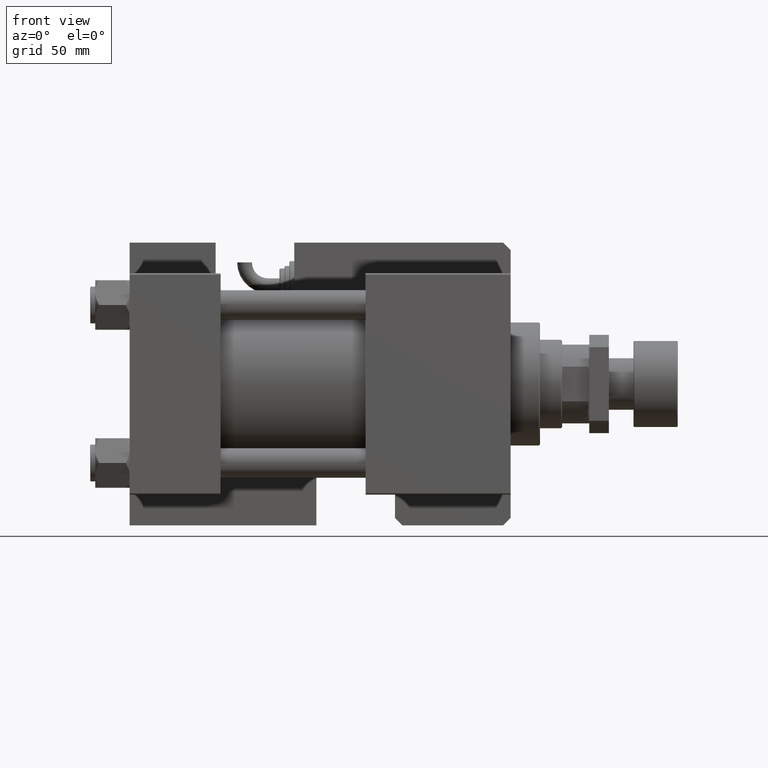
[diagram: clean part render]
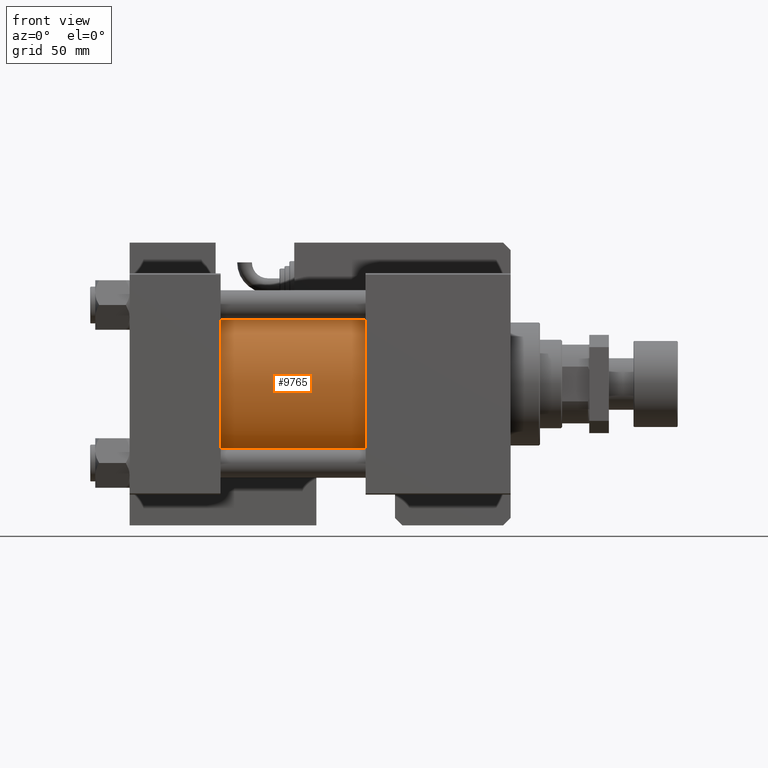
[diagram: same view with one face highlighted and labeled with its STEP entity id]
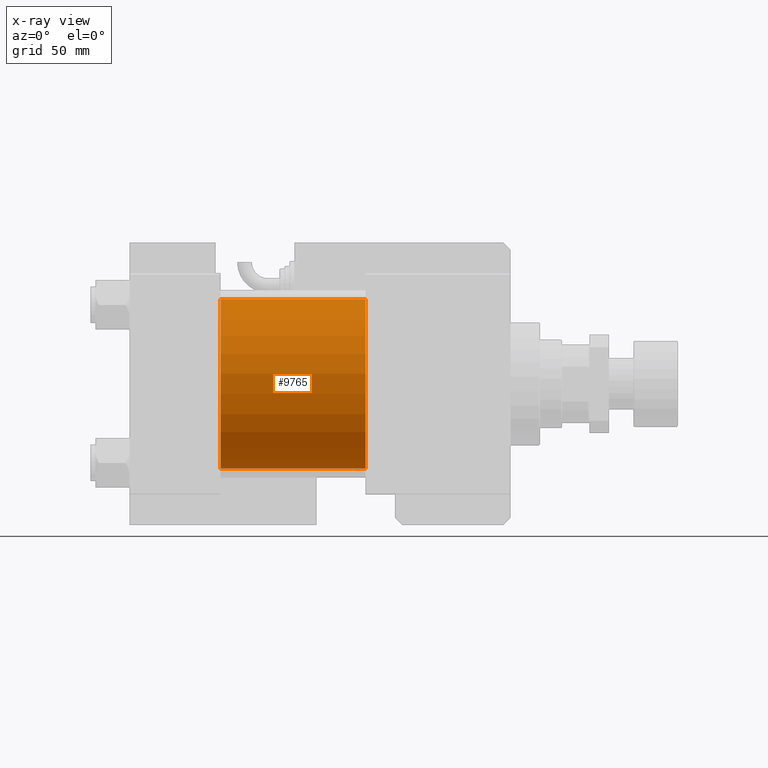
[diagram: x-ray of the same camera — body ghosted, the highlighted face saturated]
A machine part, front view. The second image highlights one B-rep face of the part: STEP entity #9765.
The next image is the same camera in x-ray: the body ghosted, the highlighted face saturated — about 2% of this face is hidden behind the body in this view.
In plain terms, the highlighted cylindrical surface (partial cylindrical patch) has radius 34.5 mm, axis along (-1, -0, -0).
Its self-contained STEP definition (entity closure, byte-faithful):
#507 = DIRECTION ( 'NONE',  ( 0.000000000000000000, 0.000000000000000000, 1.000000000000000000 ) ) ;
#2647 = EDGE_CURVE ( 'NONE', #16261, #2986, #6061, .T. ) ;
#2986 = VERTEX_POINT ( 'NONE', #53513 ) ;
#3009 = CARTESIAN_POINT ( 'NONE',  ( 96.00000000000000000, -2.602085213965210642E-15, 0.000000000000000000 ) ) ;
#4229 = FACE_OUTER_BOUND ( 'NONE', #36363, .T. ) ;
#6061 = LINE ( 'NONE', #19165, #27434 ) ;
#8208 = CARTESIAN_POINT ( 'NONE',  ( 96.00000000000000000, -2.602085213965210642E-15, 34.50000000000000000 ) ) ;
#9765 = ADVANCED_FACE ( 'NONE', ( #4229 ), #56399, .T. ) ;
#10999 = DIRECTION ( 'NONE',  ( 0.000000000000000000, 0.000000000000000000, 1.000000000000000000 ) ) ;
#13642 = VERTEX_POINT ( 'NONE', #18558 ) ;
#15337 = ORIENTED_EDGE ( 'NONE', *, *, #19786, .F. ) ;
#16261 = VERTEX_POINT ( 'NONE', #41783 ) ;
#16617 = VECTOR ( 'NONE', #17052, 1000.000000000000000 ) ;
#17052 = DIRECTION ( 'NONE',  ( -1.000000000000000000, -0.000000000000000000, -0.000000000000000000 ) ) ;
#17630 = CARTESIAN_POINT ( 'NONE',  ( 96.00000000000000000, -2.602085213965210642E-15, 0.000000000000000000 ) ) ;
#18558 = CARTESIAN_POINT ( 'NONE',  ( 96.00000000000000000, -2.602085213965210642E-15, 34.50000000000000000 ) ) ;
#19165 = CARTESIAN_POINT ( 'NONE',  ( 96.00000000000000000, 1.622946243093158675E-15, -34.50000000000000000 ) ) ;
#19664 = EDGE_CURVE ( 'NONE', #25422, #2986, #32808, .T. ) ;
#19786 = EDGE_CURVE ( 'NONE', #13642, #16261, #39153, .T. ) ;
#20684 = DIRECTION ( 'NONE',  ( 1.000000000000000000, 0.000000000000000000, 0.000000000000000000 ) ) ;
#25422 = VERTEX_POINT ( 'NONE', #50556 ) ;
#26175 = DIRECTION ( 'NONE',  ( -1.000000000000000000, -0.000000000000000000, -0.000000000000000000 ) ) ;
#27434 = VECTOR ( 'NONE', #36001, 1000.000000000000000 ) ;
#29250 = DIRECTION ( 'NONE',  ( 0.000000000000000000, 0.000000000000000000, -1.000000000000000000 ) ) ;
#32110 = ORIENTED_EDGE ( 'NONE', *, *, #47714, .T. ) ;
#32808 = CIRCLE ( 'NONE', #35520, 34.50000000000000000 ) ;
#35520 = AXIS2_PLACEMENT_3D ( 'NONE', #41798, #36680, #10999 ) ;
#36001 = DIRECTION ( 'NONE',  ( -1.000000000000000000, -0.000000000000000000, -0.000000000000000000 ) ) ;
#36363 = EDGE_LOOP ( 'NONE', ( #37792, #15337, #32110, #39244 ) ) ;
#36680 = DIRECTION ( 'NONE',  ( 1.000000000000000000, -0.000000000000000000, 0.000000000000000000 ) ) ;
#37358 = AXIS2_PLACEMENT_3D ( 'NONE', #3009, #20684, #29250 ) ;
#37792 = ORIENTED_EDGE ( 'NONE', *, *, #2647, .F. ) ;
#39153 = CIRCLE ( 'NONE', #37358, 34.50000000000000000 ) ;
#39244 = ORIENTED_EDGE ( 'NONE', *, *, #19664, .T. ) ;
#41783 = CARTESIAN_POINT ( 'NONE',  ( 96.00000000000000000, 1.622946243093158675E-15, -34.50000000000000000 ) ) ;
#41798 = CARTESIAN_POINT ( 'NONE',  ( 37.00000000000000000, -2.602085213965210642E-15, 0.000000000000000000 ) ) ;
#47714 = EDGE_CURVE ( 'NONE', #13642, #25422, #48110, .T. ) ;
#48110 = LINE ( 'NONE', #8208, #16617 ) ;
#50556 = CARTESIAN_POINT ( 'NONE',  ( 37.00000000000000000, -2.602085213965210642E-15, 34.50000000000000000 ) ) ;
#52187 = AXIS2_PLACEMENT_3D ( 'NONE', #17630, #26175, #507 ) ;
#53513 = CARTESIAN_POINT ( 'NONE',  ( 37.00000000000000000, 1.622946243093158675E-15, -34.50000000000000000 ) ) ;
#56399 = CYLINDRICAL_SURFACE ( 'NONE', #52187, 34.50000000000000000 ) ;